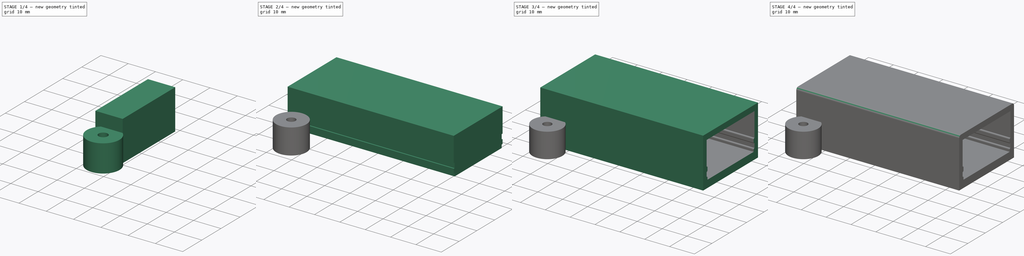
[diagram: build sequence overview — one tinted view per stage of 4, left to right]
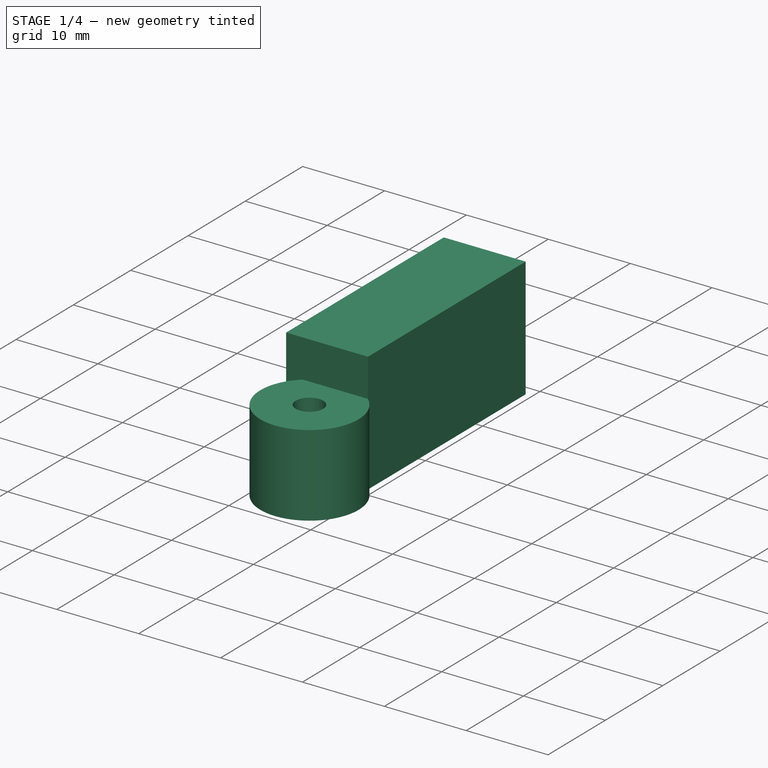
[diagram: stage 1 of 4 — iso view after this stage's code; geometry added in this stage tinted green]
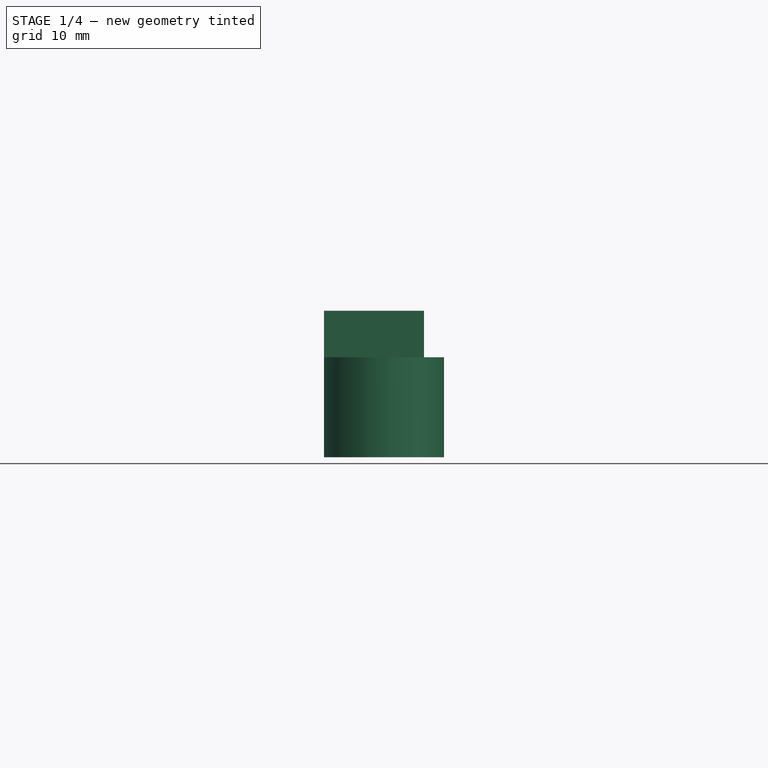
[diagram: stage 1 of 4 — front view after this stage's code; geometry added in this stage tinted green]
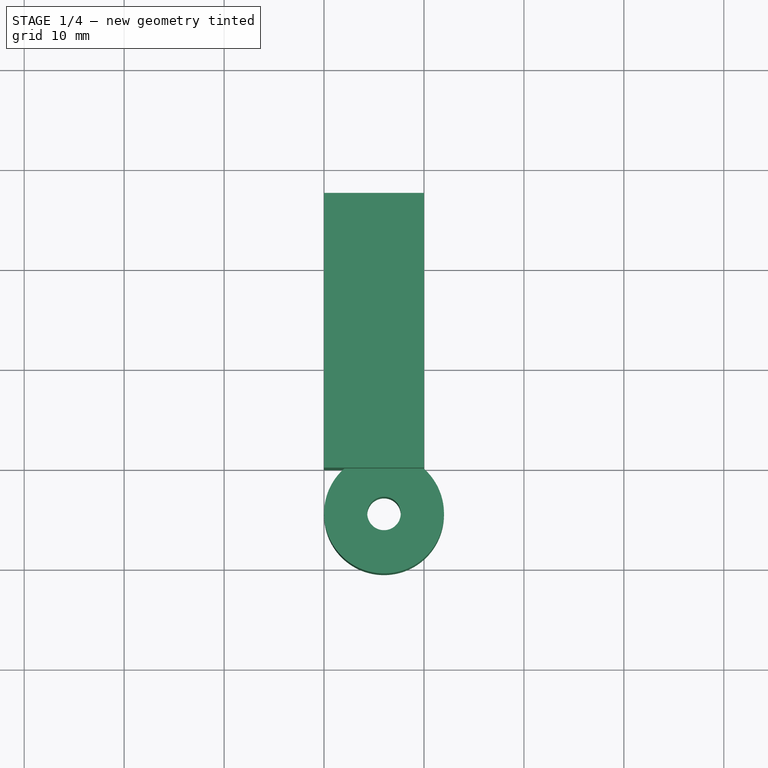
[diagram: stage 1 of 4 — top view after this stage's code; geometry added in this stage tinted green]
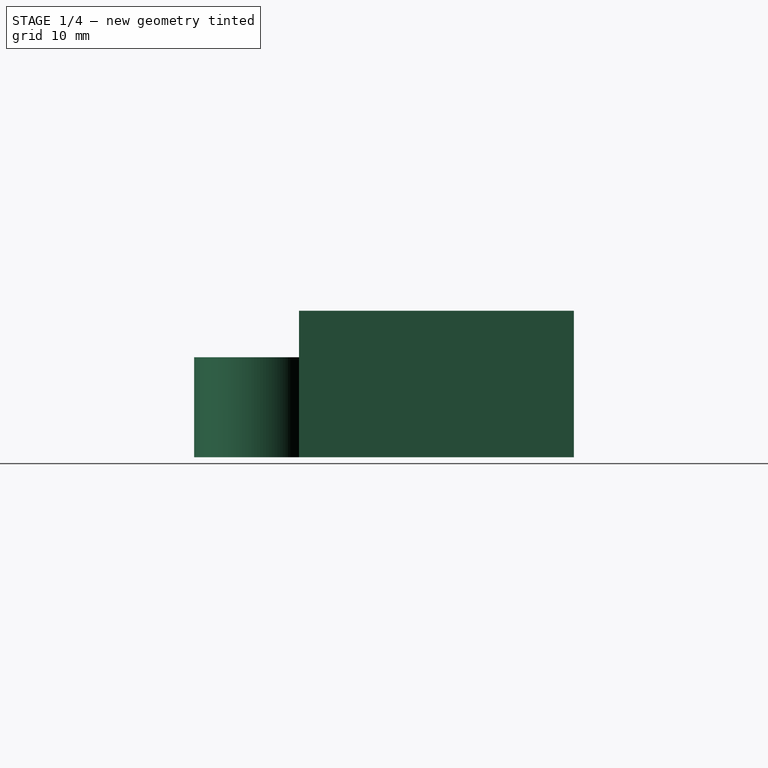
[diagram: stage 1 of 4 — right view after this stage's code; geometry added in this stage tinted green]
FCSTD DOCUMENT  (FreeCAD 0.21R33771 (Git))
Label: stepdown-case-63x27x14mm
License: All rights reserved
LicenseURL: https://en.wikipedia.org/wiki/All_rights_reserved
objects: Sketcher::SketchObject×4, PartDesign::Pad×4, PartDesign::Body×3, Part::Cut×2, Part::Fillet×2, Spreadsheet::Sheet×1, Part::FeaturePython×1, Part::MultiFuse×1
note: 21 computed .brp shape members not serialized (recipe doc carries the construction recipe); baked Part::Feature solids carry a one-line shape summary decoded from their .brp

FEATURE [PartDesign::Body] Body001  label="Inner Volume"
  Group = -> [Sketch001,Pad001]
  Origin = -> Origin001
  Tip = -> Pad001
FEATURE [Sketcher::SketchObject] Sketch002
  FullyConstrained = true
  MapMode = 5
  Placement = pos=(0,0,0) rot=(0.57735,0.57735,0.57735;2.0944rad)
  Support = -> [YZ_Plane002]
  expr: Constraints[11] = Spreadsheet.boardTrackProtrusion
  expr: Constraints[21] = Spreadsheet.boardTrackProtrusion
  expr: Constraints[22] = Spreadsheet.boardWidth
  expr: Constraints[23] = Spreadsheet.underCarriageClearance
  expr: Constraints[33] = Spreadsheet.underCarriageClearance + Spreadsheet.boardThickness + Spreadsheet.boardThicknessBuffer
  expr: Constraints[34] = Spreadsheet.wallThickness
  expr: Constraints[35] = Spreadsheet.boardTrackProtrusion
  expr: Constraints[9] = Spreadsheet.underCarriageClearance
  sketch-geometry (16):
    g0: LineSegment StartX=0 StartY=0 StartZ=0 EndX=0.5 EndY=0 EndZ=0
    g1: LineSegment StartX=0.5 StartY=0 StartZ=0 EndX=0.5 EndY=1.25 EndZ=0
    g2: LineSegment StartX=0.5 StartY=1.25 StartZ=0 EndX=0 EndY=1.25 EndZ=0
    g3: LineSegment StartX=0 StartY=1.25 StartZ=0 EndX=0 EndY=0 EndZ=0
    g4: LineSegment StartX=27.5 StartY=0 StartZ=0 EndX=27 EndY=0 EndZ=0
    g5: LineSegment StartX=27 StartY=0 StartZ=0 EndX=27 EndY=1.25 EndZ=0
    g6: LineSegment StartX=27 StartY=1.25 StartZ=0 EndX=27.5 EndY=1.25 EndZ=0
    g7: LineSegment StartX=27.5 StartY=1.25 StartZ=0 EndX=27.5 EndY=0 EndZ=0
    g8: LineSegment StartX=0 StartY=2.95 StartZ=0 EndX=0.5 EndY=2.95 EndZ=0
    g9: LineSegment StartX=0.5 StartY=2.95 StartZ=0 EndX=0.5 EndY=4.95 EndZ=0
    g10: LineSegment StartX=0.5 StartY=4.95 StartZ=0 EndX=0 EndY=4.95 EndZ=0
    g11: LineSegment StartX=0 StartY=4.95 StartZ=0 EndX=0 EndY=2.95 EndZ=0
    g12: LineSegment StartX=27.5 StartY=4.95 StartZ=0 EndX=27 EndY=4.95 EndZ=0
    g13: LineSegment StartX=27 StartY=4.95 StartZ=0 EndX=27 EndY=2.95 EndZ=0
    g14: LineSegment StartX=27 StartY=2.95 StartZ=0 EndX=27.5 EndY=2.95 EndZ=0
    g15: LineSegment StartX=27.5 StartY=2.95 StartZ=0 EndX=27.5 EndY=4.95 EndZ=0
  constraints (48):
    c: Coincident(g0,g1)
    c: Coincident(g1,g2)
    c: Coincident(g2,g3)
    c: Coincident(g3,g0)
    c: Horizontal(g0)
    c: Horizontal(g2)
    c: Vertical(g1)
    c: Vertical(g3)
    c: PointOnObject(g0,g-2)
    c: DistanceY(g-1,g2) = 1.25
    c: DistanceY(g-1,g0) = 0
    c: DistanceX(g2,g2) = 0.5
    c: Coincident(g4,g5)
    c: Coincident(g5,g6)
    c: Coincident(g6,g7)
    c: Coincident(g7,g4)
    c: Horizontal(g4)
    c: Horizontal(g6)
    c: Vertical(g5)
    c: Vertical(g7)
    c: PointOnObject(g4,g-1)
    c: DistanceX(g6,g6) = 0.5
    c: DistanceX(g0,g4) = 27.5
    c: DistanceY(g5,g5) = 1.25
    c: Coincident(g8,g9)
    c: Coincident(g9,g10)
    c: Coincident(g10,g11)
    c: Coincident(g11,g8)
    c: Horizontal(g8)
    c: Horizontal(g10)
    c: Vertical(g9)
    c: Vertical(g11)
    c: PointOnObject(g8,g-2)
    c: DistanceY(g0,g8) = 2.95
    c: DistanceY(g11,g11) = 2
    c: DistanceX(g8,g8) = 0.5
    c: Coincident(g12,g13)
    c: Coincident(g13,g14)
    c: Coincident(g14,g15)
    c: Coincident(g15,g12)
    c: Horizontal(g12)
    c: Horizontal(g14)
    c: Vertical(g13)
    c: Vertical(g15)
    c: DistanceX(g14,g6) = 0
    c: DistanceX(g13,g5) = 0
    c: DistanceY(g12,g9) = 0
    c: DistanceY(g8,g13) = 0
FEATURE [Sketcher::SketchObject] Sketch003
  FullyConstrained = true
  MapMode = 5
  Placement = pos=(0,0,0) rot=(0.57735,0.57735,0.57735;2.0944rad)
  Support = -> [YZ_Plane002]
  expr: Constraints[10] = Spreadsheet.boardWidth
  expr: Constraints[9] = Spreadsheet.innerHeight
  sketch-geometry (4):
    g0: LineSegment StartX=0 StartY=0 StartZ=0 EndX=27.5 EndY=0 EndZ=0
    g1: LineSegment StartX=27.5 StartY=0 StartZ=0 EndX=27.5 EndY=14.65 EndZ=0
    g2: LineSegment StartX=27.5 StartY=14.65 StartZ=0 EndX=0 EndY=14.65 EndZ=0
    g3: LineSegment StartX=0 StartY=14.65 StartZ=0 EndX=0 EndY=0 EndZ=0
  constraints (11):
    c: Coincident(g0,g1)
    c: Coincident(g1,g2)
    c: Coincident(g2,g3)
    c: Coincident(g3,g0)
    c: Horizontal(g0)
    c: Horizontal(g2)
    c: Vertical(g1)
    c: Vertical(g3)
    c: Coincident(g0,g-1)
    c: DistanceY(g0,g1) = 14.65
    c: DistanceX(g0,g0) = 27.5
FEATURE [PartDesign::Pad] Pad002
  Direction = (1,-2e-16,3e-16)
  Length = 10
  Length2 = 10
  Placement = pos=(0,0,0) rot=(0.57735,0.57735,0.57735;2.0944rad)
  Profile = -> Sketch003
  ReferenceAxis = -> Sketch003 [N_Axis]
  Type = 0
FEATURE [Part::FeaturePython] Tube  # WARN: FeaturePython — macro-defined, semantics opaque (R4)
  AttacherType = Attacher::AttachEngine3D
  Height = 10
  InnerRadius = 1.675
  OuterRadius = 6
  Placement = pos=(6,-4.5,0) rot=(0,0,1;0rad)
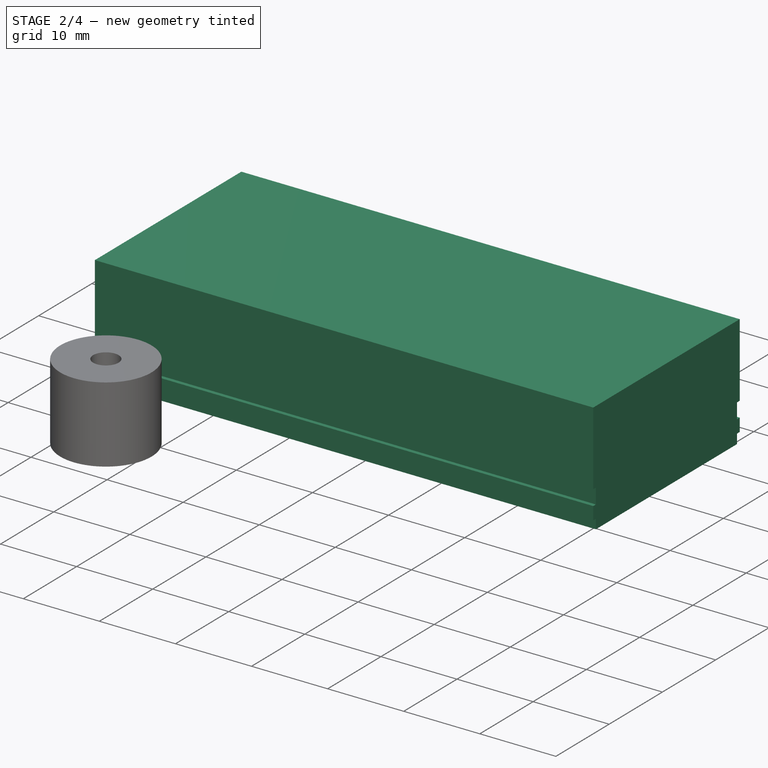
[diagram: stage 2 of 4 — iso view after this stage's code; geometry added in this stage tinted green]
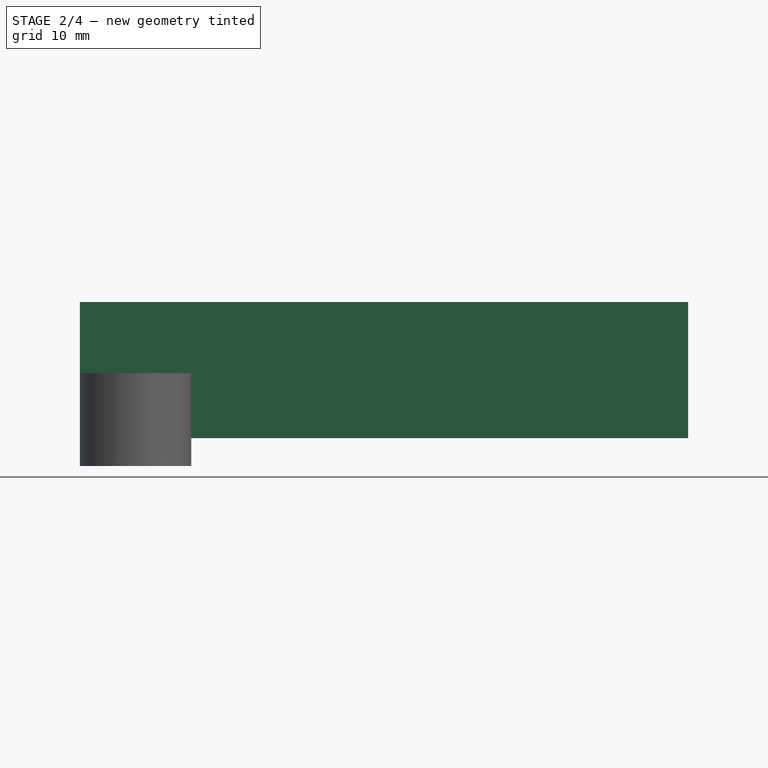
[diagram: stage 2 of 4 — front view after this stage's code; geometry added in this stage tinted green]
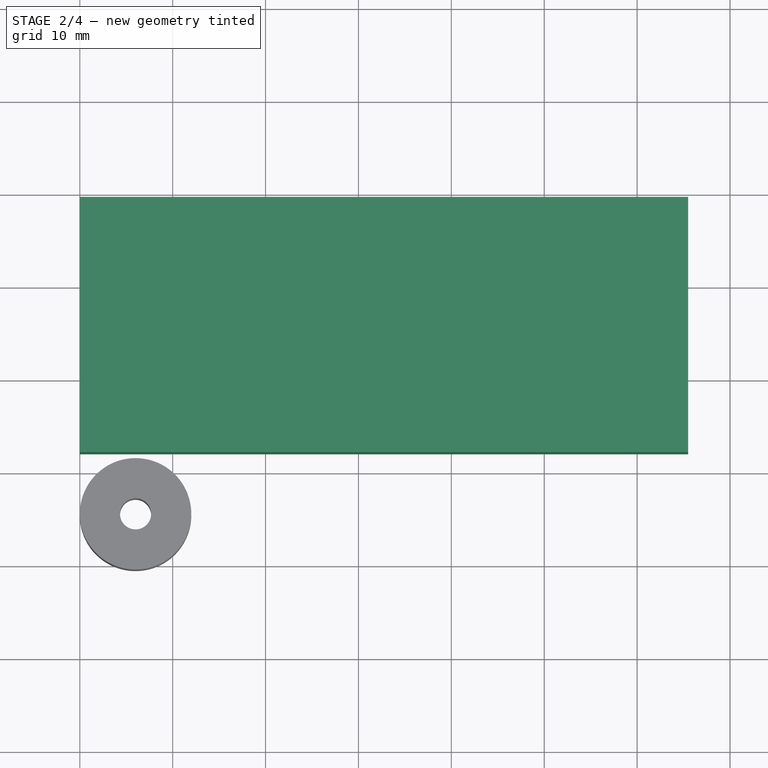
[diagram: stage 2 of 4 — top view after this stage's code; geometry added in this stage tinted green]
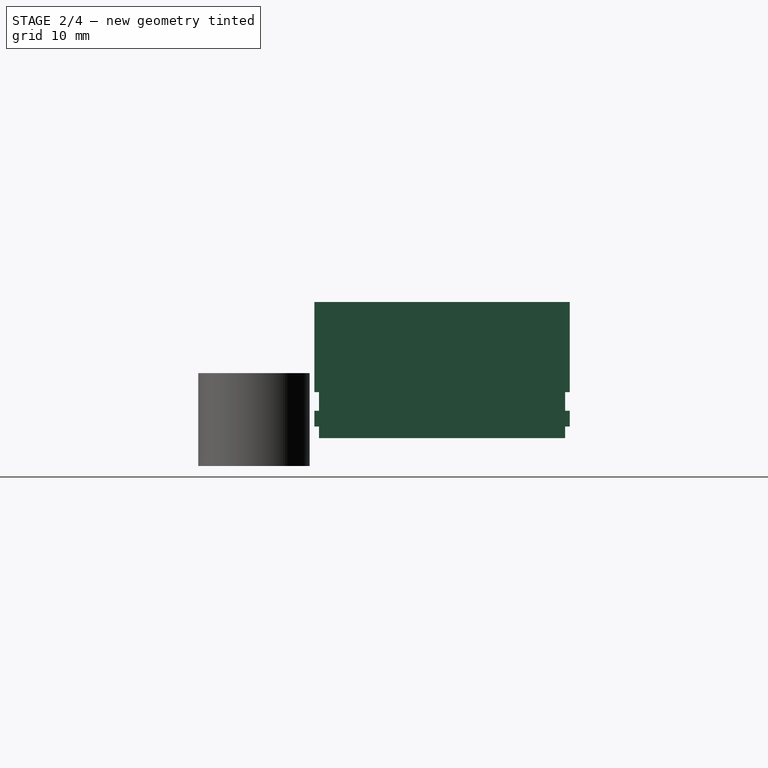
[diagram: stage 2 of 4 — right view after this stage's code; geometry added in this stage tinted green]
FEATURE [PartDesign::Body] Body  label="Outer Case"
  Group = -> [Sketch,Pad]
  Origin = -> Origin
  Tip = -> Pad
FEATURE [Sketcher::SketchObject] Sketch001
  FullyConstrained = true
  MapMode = 5
  Support = -> [XY_Plane001]
  expr: Constraints[10] = Spreadsheet.boardWidth
  expr: Constraints[9] = Spreadsheet.boardLength
  sketch-geometry (4):
    g0: LineSegment StartX=0 StartY=0 StartZ=0 EndX=65.5 EndY=0 EndZ=0
    g1: LineSegment StartX=65.5 StartY=0 StartZ=0 EndX=65.5 EndY=27.5 EndZ=0
    g2: LineSegment StartX=65.5 StartY=27.5 StartZ=0 EndX=0 EndY=27.5 EndZ=0
    g3: LineSegment StartX=0 StartY=27.5 StartZ=0 EndX=0 EndY=0 EndZ=0
  constraints (11):
    c: Coincident(g0,g1)
    c: Coincident(g1,g2)
    c: Coincident(g2,g3)
    c: Coincident(g3,g0)
    c: Horizontal(g0)
    c: Horizontal(g2)
    c: Vertical(g1)
    c: Vertical(g3)
    c: Coincident(g0,g-1)
    c: DistanceX(g2,g2) = 65.5
    c: DistanceY(g1,g1) = 27.5
FEATURE [PartDesign::Pad] Pad001
  Direction = (0,0,1)
  Length = 14.65
  Length2 = 10
  Profile = -> Sketch001
  ReferenceAxis = -> Sketch001 [N_Axis]
  Type = 0
  expr: Length = Spreadsheet.innerHeight
FEATURE [PartDesign::Pad] Pad003
  BaseFeature = -> Pad002
  Direction = (1,-2e-16,3e-16)
  Length = 100
  Length2 = 10
  Placement = pos=(0,0,0) rot=(0.57735,0.57735,0.57735;2.0944rad)
  Profile = -> Sketch002
  ReferenceAxis = -> Sketch002 [N_Axis]
  Type = 0
FEATURE [PartDesign::Body] Body002  label="Inner Volume Track Removal"
  Group = -> [Sketch002,Sketch003,Pad002,Pad003]
  Origin = -> Origin002
  Placement = pos=(-25,0,0) rot=(0,0,1;0rad)
  Tip = -> Pad003
FEATURE [Part::Cut] Cut
  Base = -> Body001
  Placement = pos=(0,2,3) rot=(0,0,1;0rad)
  Tool = -> Body002
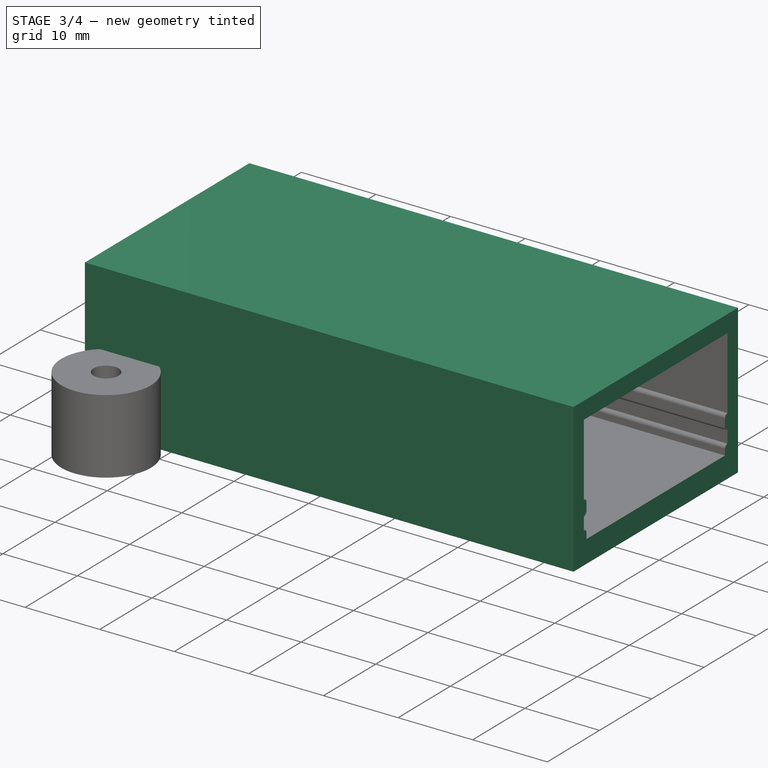
[diagram: stage 3 of 4 — iso view after this stage's code; geometry added in this stage tinted green]
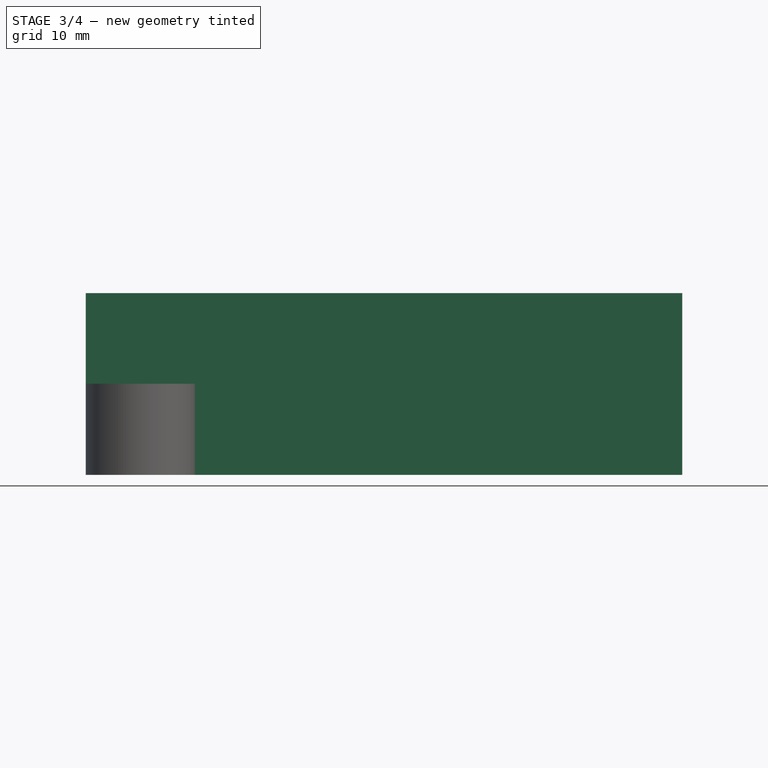
[diagram: stage 3 of 4 — front view after this stage's code; geometry added in this stage tinted green]
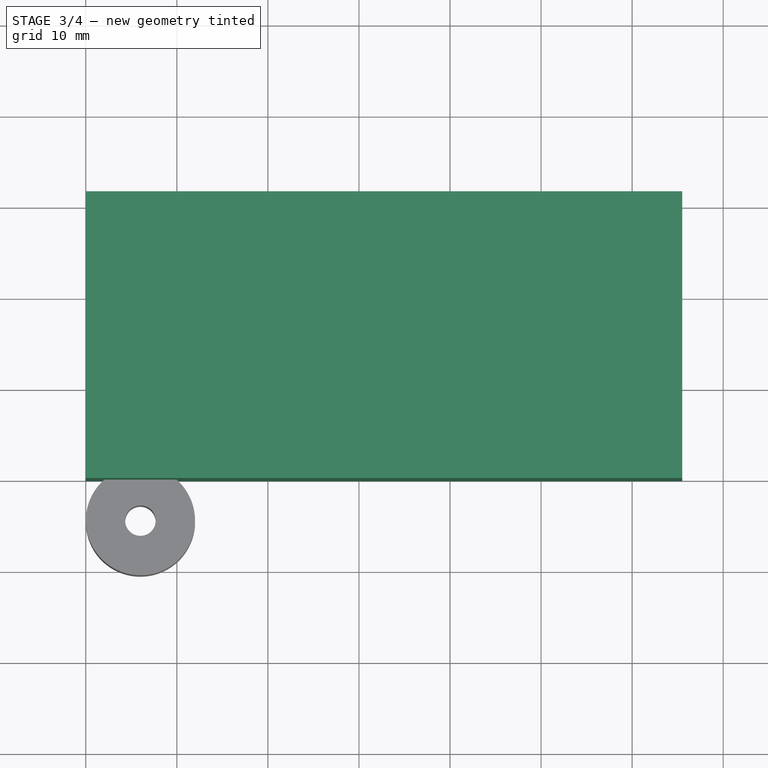
[diagram: stage 3 of 4 — top view after this stage's code; geometry added in this stage tinted green]
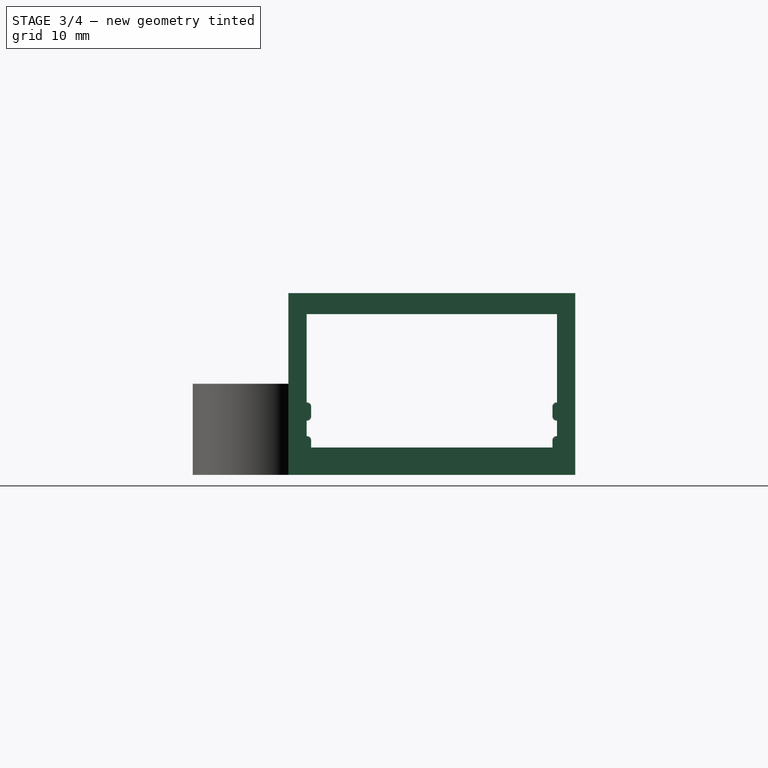
[diagram: stage 3 of 4 — right view after this stage's code; geometry added in this stage tinted green]
FEATURE [Spreadsheet::Sheet] Spreadsheet
  cells = C4='wallThickness; D4(wallThickness)==2 mm; C5='boardWidth; D5(boardWidth)==27.5 mm; C6='maxComponentHeight; D6(maxComponentHeight)==13 mm; C7='boardLength; D7(boardLength)==65.5 mm; C8='boardThickness; D8(boardThickness)==1.5 mm; C9='boardThicknessBuffer; D9(boardThicknessBuffer)==0.2 mm; C10='undercarriageClearance; D10(underCarriageClearance)==1.25 mm; C11='boardTrackProtrusion; D11(boardTrackProtrusion)==0.5 mm; C13='outerHeight; D13(outerHeight)==wallThickness * 2 + underCarriageClearance + boardThicknessBuffer + boardThickness + maxComponentHeight; C14='outerWidth; D14(outerWidth)==boardWidth + wallThickness * 2; C15='innerHeight; D15(innerHeight)==underCarriageClearance + boardThicknessBuffer + boardThicknessBuffer + maxComponentHeight
FEATURE [Sketcher::SketchObject] Sketch
  FullyConstrained = true
  MapMode = 5
  Support = -> [XY_Plane]
  expr: Constraints[10] = Spreadsheet.outerWidth
  expr: Constraints[9] = Spreadsheet.boardLength
  sketch-geometry (4):
    g0: LineSegment StartX=0 StartY=0 StartZ=0 EndX=65.5 EndY=0 EndZ=0
    g1: LineSegment StartX=65.5 StartY=0 StartZ=0 EndX=65.5 EndY=31.5 EndZ=0
    g2: LineSegment StartX=65.5 StartY=31.5 StartZ=0 EndX=0 EndY=31.5 EndZ=0
    g3: LineSegment StartX=0 StartY=31.5 StartZ=0 EndX=0 EndY=0 EndZ=0
  constraints (11):
    c: Coincident(g0,g1)
    c: Coincident(g1,g2)
    c: Coincident(g2,g3)
    c: Coincident(g3,g0)
    c: Horizontal(g0)
    c: Horizontal(g2)
    c: Vertical(g1)
    c: Vertical(g3)
    c: Coincident(g0,g-1)
    c: DistanceX(g2,g2) = 65.5
    c: DistanceY(g1,g1) = 31.5
FEATURE [PartDesign::Pad] Pad
  Direction = (0,0,1)
  Length = 19.95
  Length2 = 10
  Profile = -> Sketch
  ReferenceAxis = -> Sketch [N_Axis]
  Type = 0
  expr: Length = Spreadsheet.outerHeight
FEATURE [Part::Cut] Cut001  label="Case"
  Base = -> Body
  Tool = -> Cut
FEATURE [Part::Fillet] Fillet
  Base = -> Cut001
  Edges = 6 edges r=0.45: [Edge46,Edge49,Edge52,Edge53,Edge58,Edge59]
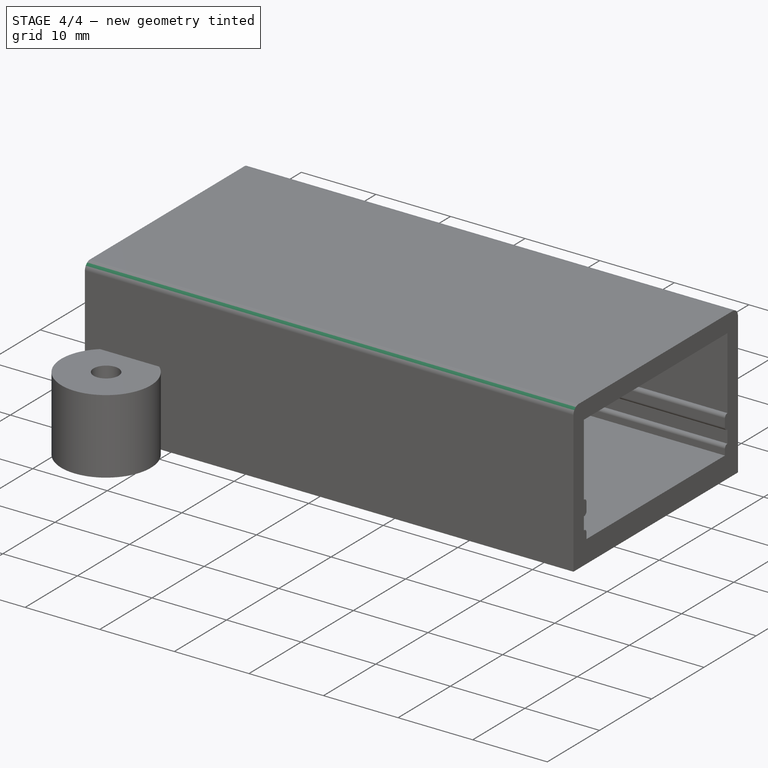
[diagram: stage 4 of 4 — iso view after this stage's code; geometry added in this stage tinted green]
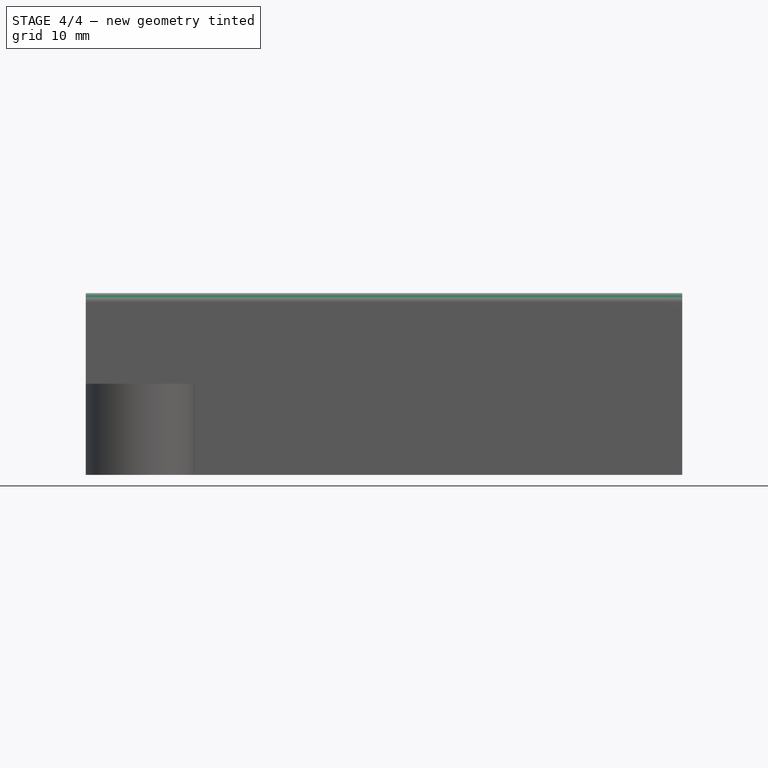
[diagram: stage 4 of 4 — front view after this stage's code; geometry added in this stage tinted green]
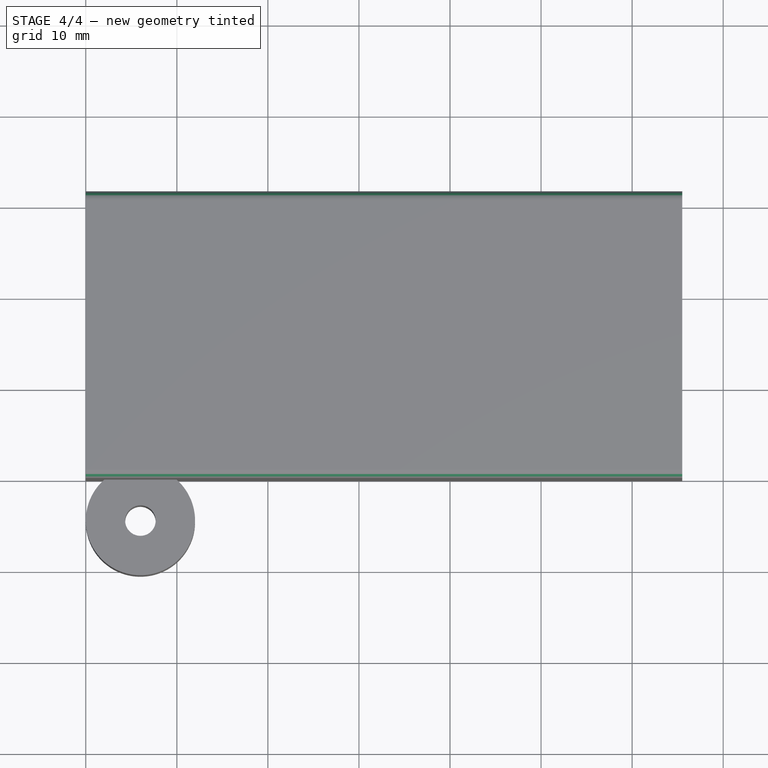
[diagram: stage 4 of 4 — top view after this stage's code; geometry added in this stage tinted green]
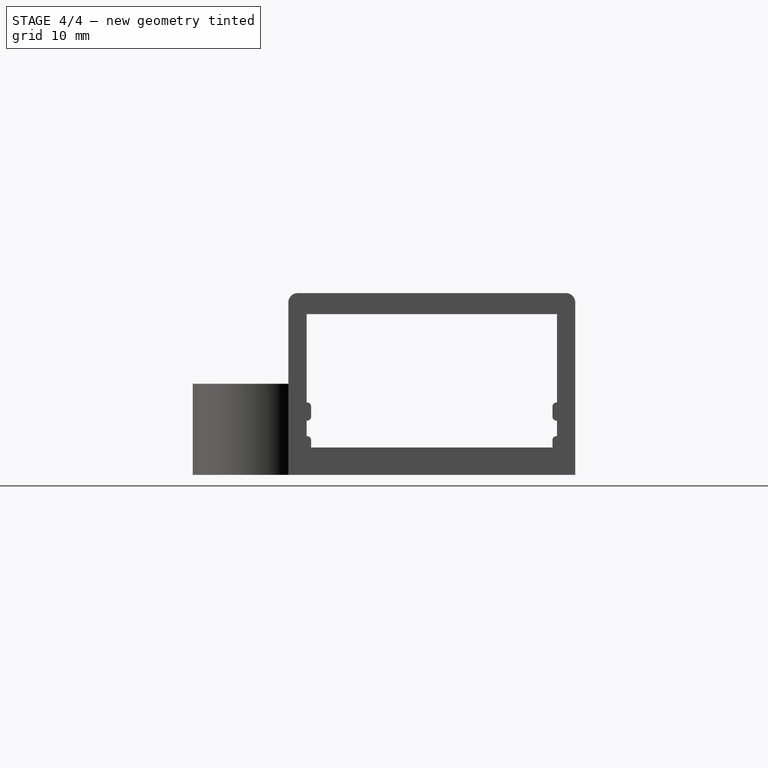
[diagram: stage 4 of 4 — right view after this stage's code; geometry added in this stage tinted green]
FEATURE [Part::Fillet] Fillet001
  Base = -> Fillet
  Edges = 2 edges r=1: [Edge72,Edge76]
FEATURE [Part::MultiFuse] Fusion  label="Stepdown Case With Anchor"
  Shapes = -> [Fillet001,Tube]
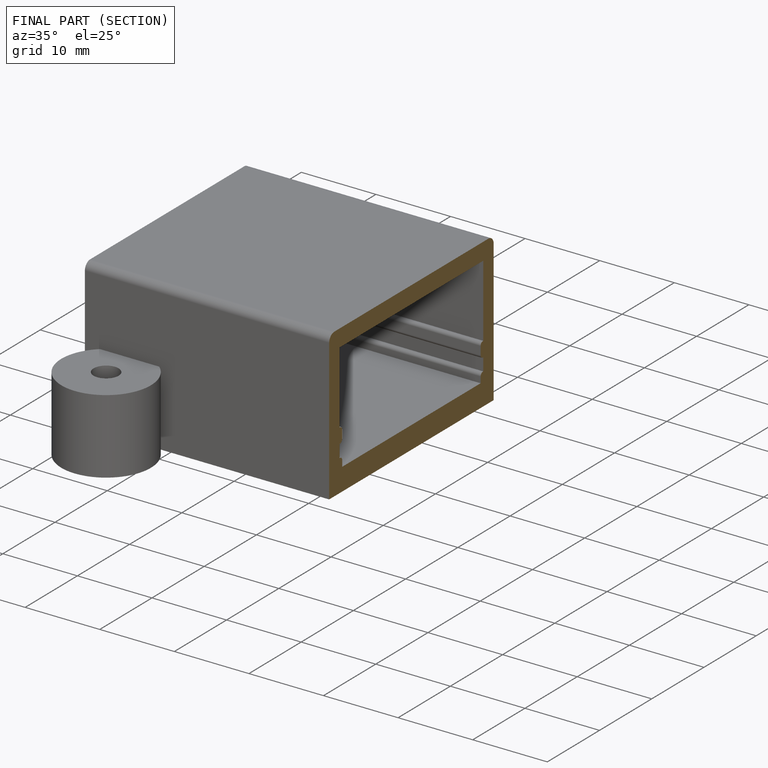
[diagram: finished part — half-section view (interior)]
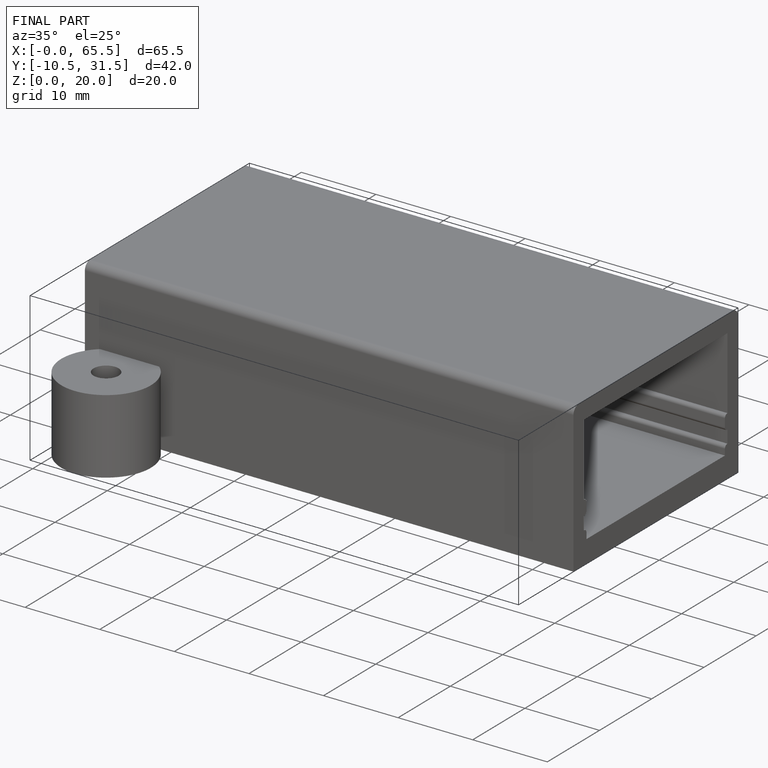
[diagram: finished part — iso view with bounding-box wireframe]
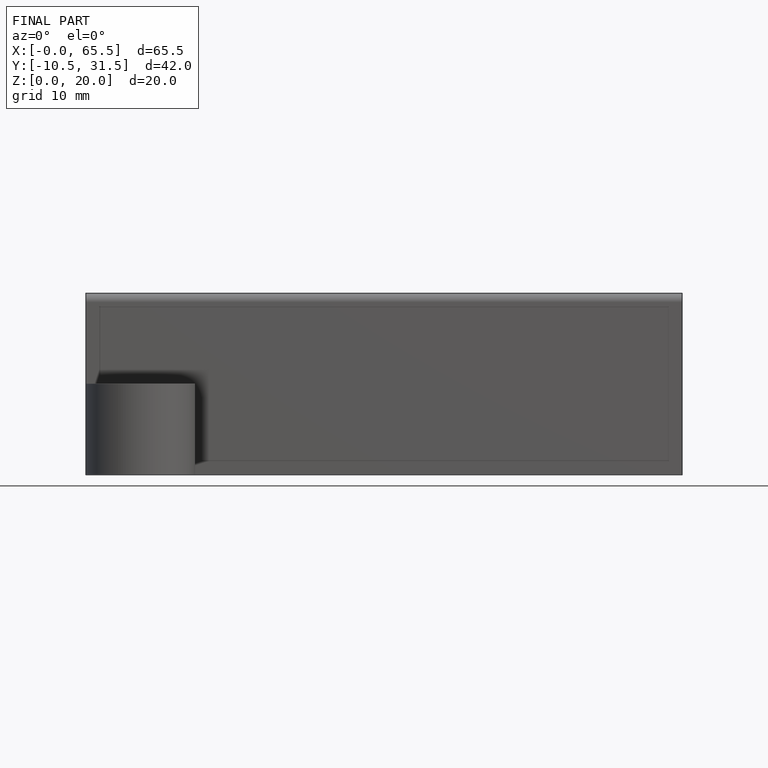
[diagram: finished part — front view with bounding-box wireframe]
